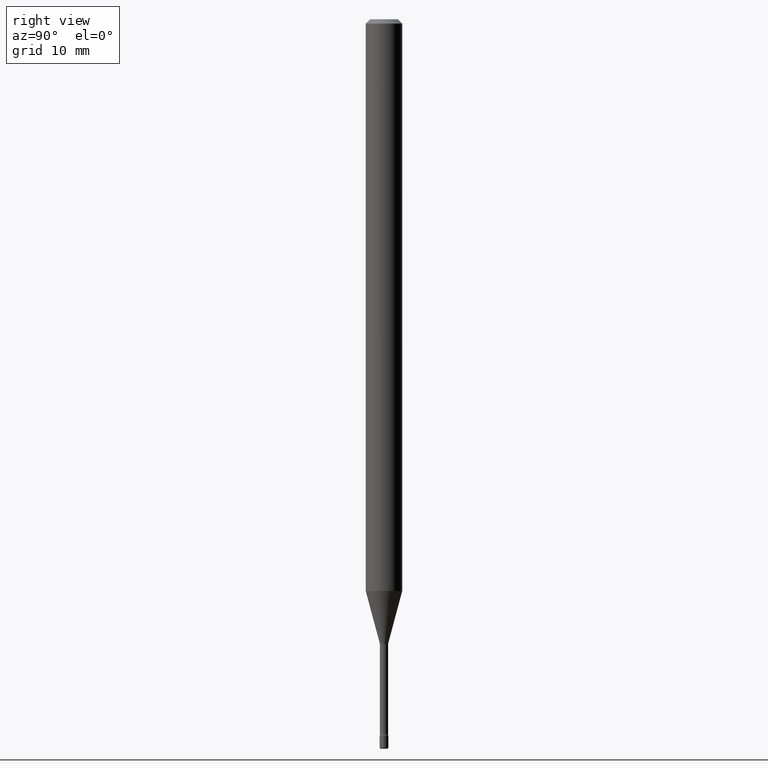
[diagram: clean part render]
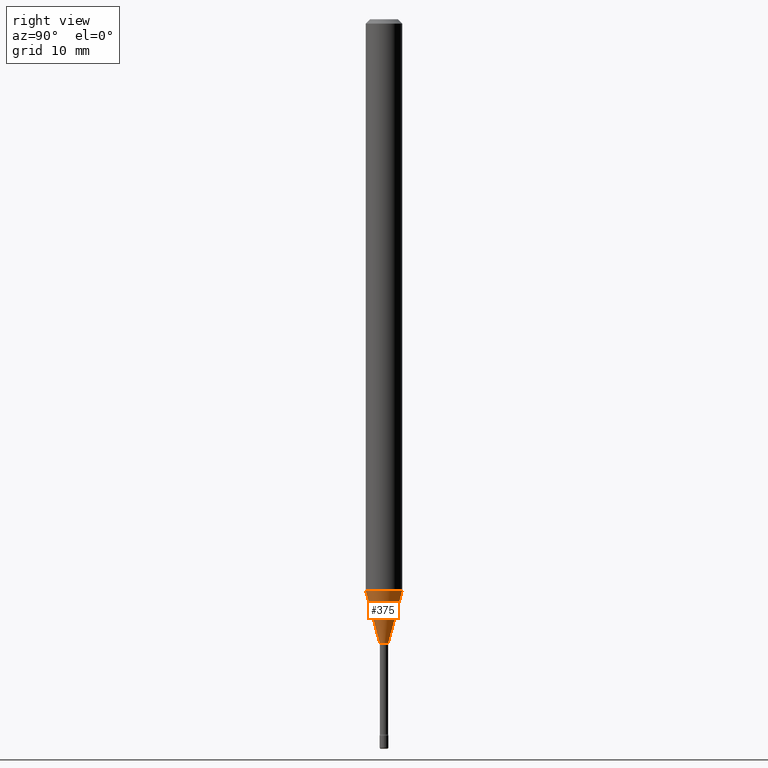
[diagram: same view with one face highlighted and labeled with its STEP entity id]
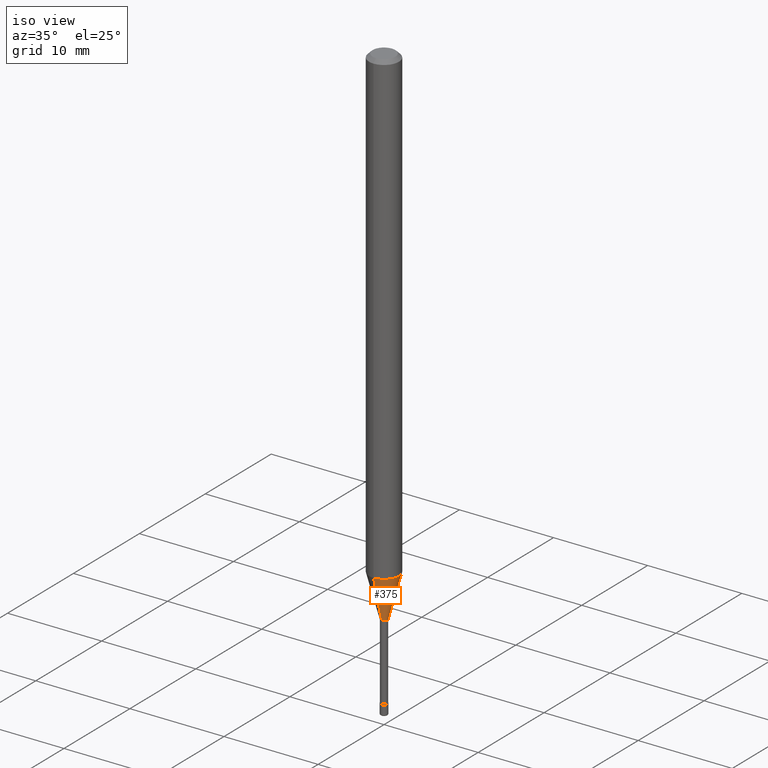
[diagram: same view with one face highlighted and labeled with its STEP entity id]
A machine part, right view. The second image highlights one B-rep face of the part: STEP entity #375.
A second angle (iso view) of the same face is appended — the face is thin or edge-on in the first view.
In plain terms, the highlighted conical surface has half-angle 15 deg.
Its self-contained STEP definition (entity closure, byte-faithful):
#5 = AXIS2_PLACEMENT_3D ( 'NONE', #564, #521, #468 ) ;
#16 = EDGE_CURVE ( 'NONE', #86, #406, #130, .T. ) ;
#37 = ORIENTED_EDGE ( 'NONE', *, *, #16, .F. ) ;
#86 = VERTEX_POINT ( 'NONE', #454 ) ;
#106 = CARTESIAN_POINT ( 'NONE',  ( 4.440892098501102436E-16, 0.06249999999999313743, -1.959368740913667306 ) ) ;
#119 = DIRECTION ( 'NONE',  ( -6.982962677686265922E-15, -1.000000000000000000, 0.000000000000000000 ) ) ;
#125 = DIRECTION ( 'NONE',  ( -1.807323732225328562E-15, -0.2588190451025179639, 0.9659258262890689783 ) ) ;
#130 = CIRCLE ( 'NONE', #5, 0.06250000000000000000 ) ;
#151 = AXIS2_PLACEMENT_3D ( 'NONE', #491, #267, #119 ) ;
#159 = EDGE_CURVE ( 'NONE', #243, #253, #179, .T. ) ;
#171 = CARTESIAN_POINT ( 'NONE',  ( -1.020288540047705920E-16, -0.01461111260567144257, -2.138092501787273392 ) ) ;
#172 = CONICAL_SURFACE ( 'NONE', #378, 0.01461111260566397632, 0.2617993877991501295 ) ;
#179 = CIRCLE ( 'NONE', #151, 0.01461111260566397632 ) ;
#192 = DIRECTION ( 'NONE',  ( 1.839019923739599526E-15, 0.2588190451025248473, 0.9659258262890673130 ) ) ;
#198 = ORIENTED_EDGE ( 'NONE', *, *, #225, .F. ) ;
#225 = EDGE_CURVE ( 'NONE', #243, #86, #569, .T. ) ;
#238 = CARTESIAN_POINT ( 'NONE',  ( 1.038181992333259507E-16, 0.01461111260565651181, -2.138092501787273392 ) ) ;
#243 = VERTEX_POINT ( 'NONE', #504 ) ;
#253 = VERTEX_POINT ( 'NONE', #428 ) ;
#267 = DIRECTION ( 'NONE',  ( -2.445471445538969048E-29, 3.491477559138235068E-15, 1.000000000000000000 ) ) ;
#276 = DIRECTION ( 'NONE',  ( -2.445471445538969048E-29, 3.491477559138235068E-15, 1.000000000000000000 ) ) ;
#340 = VECTOR ( 'NONE', #192, 39.37007874015747433 ) ;
#351 = EDGE_CURVE ( 'NONE', #253, #406, #455, .T. ) ;
#375 = ADVANCED_FACE ( 'NONE', ( #546 ), #172, .T. ) ;
#378 = AXIS2_PLACEMENT_3D ( 'NONE', #500, #276, #501 ) ;
#406 = VERTEX_POINT ( 'NONE', #106 ) ;
#419 = ORIENTED_EDGE ( 'NONE', *, *, #159, .T. ) ;
#428 = CARTESIAN_POINT ( 'NONE',  ( 2.739537045417182759E-16, 0.01461111260565651181, -2.138092501787273392 ) ) ;
#439 = ORIENTED_EDGE ( 'NONE', *, *, #351, .T. ) ;
#454 = CARTESIAN_POINT ( 'NONE',  ( -4.364351673553436475E-16, -0.06250000000000684175, -1.959368740913666640 ) ) ;
#455 = LINE ( 'NONE', #238, #340 ) ;
#468 = DIRECTION ( 'NONE',  ( -6.982962677686265922E-15, -1.000000000000000000, 4.370956789862821150E-15 ) ) ;
#491 = CARTESIAN_POINT ( 'NONE',  ( 5.228644161041752934E-29, -7.465101989351990399E-15, -2.138092501787273392 ) ) ;
#495 = VECTOR ( 'NONE', #125, 39.37007874015749564 ) ;
#500 = CARTESIAN_POINT ( 'NONE',  ( 5.228644161041752934E-29, -7.465101989351990399E-15, -2.138092501787273392 ) ) ;
#501 = DIRECTION ( 'NONE',  ( -6.982962677686265922E-15, -1.000000000000000000, 0.000000000000000000 ) ) ;
#504 = CARTESIAN_POINT ( 'NONE',  ( -1.020288540047705920E-16, -0.01461111260567144257, -2.138092501787273392 ) ) ;
#521 = DIRECTION ( 'NONE',  ( -2.445471445538969048E-29, 3.491477559138235068E-15, 1.000000000000000000 ) ) ;
#546 = FACE_OUTER_BOUND ( 'NONE', #552, .T. ) ;
#552 = EDGE_LOOP ( 'NONE', ( #419, #439, #37, #198 ) ) ;
#564 = CARTESIAN_POINT ( 'NONE',  ( 4.791580307186014448E-29, -6.841091988977007284E-15, -1.959368740913666862 ) ) ;
#569 = LINE ( 'NONE', #171, #495 ) ;